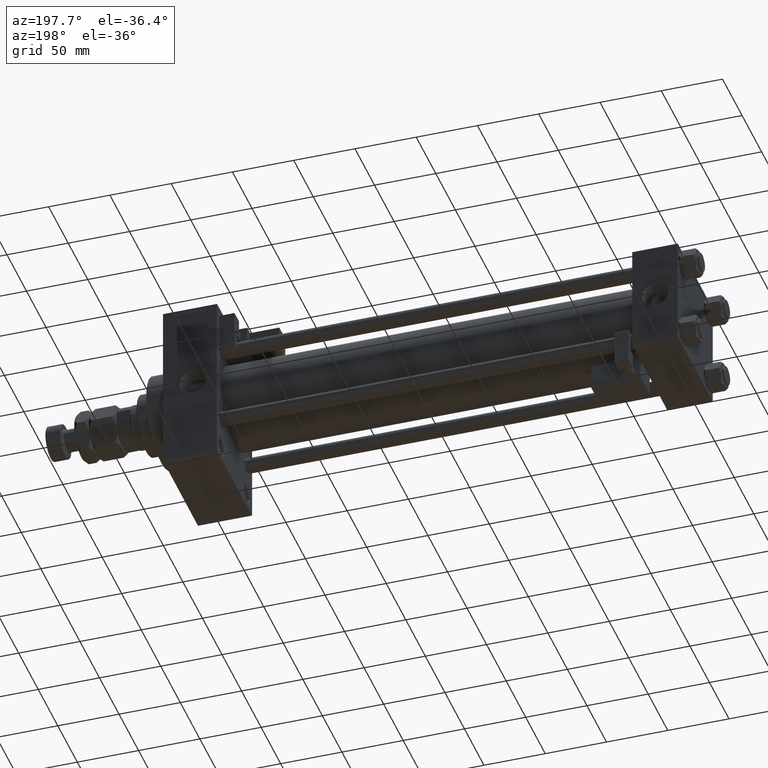
[diagram: clean part render]
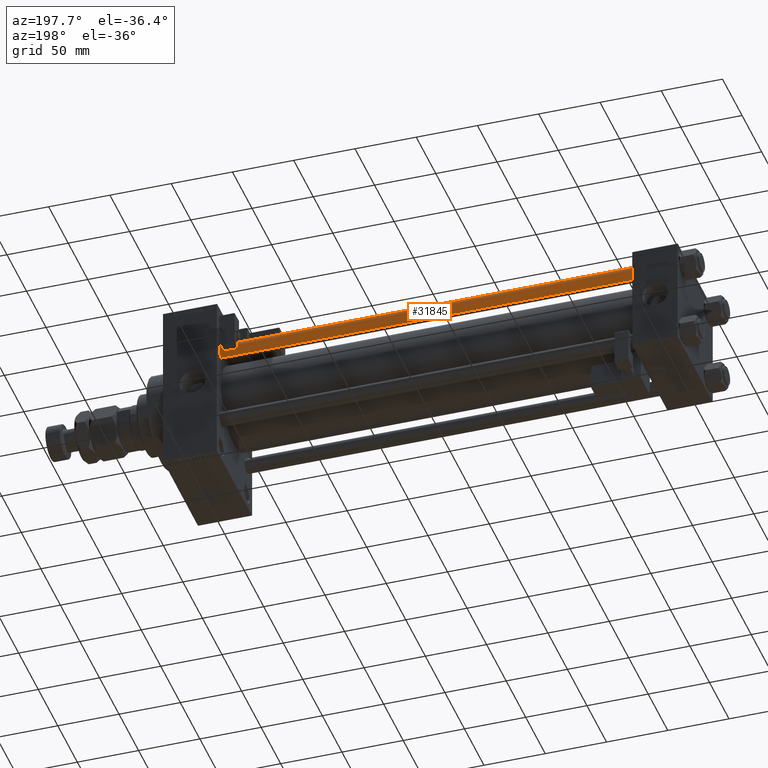
[diagram: same view with one face highlighted and labeled with its STEP entity id]
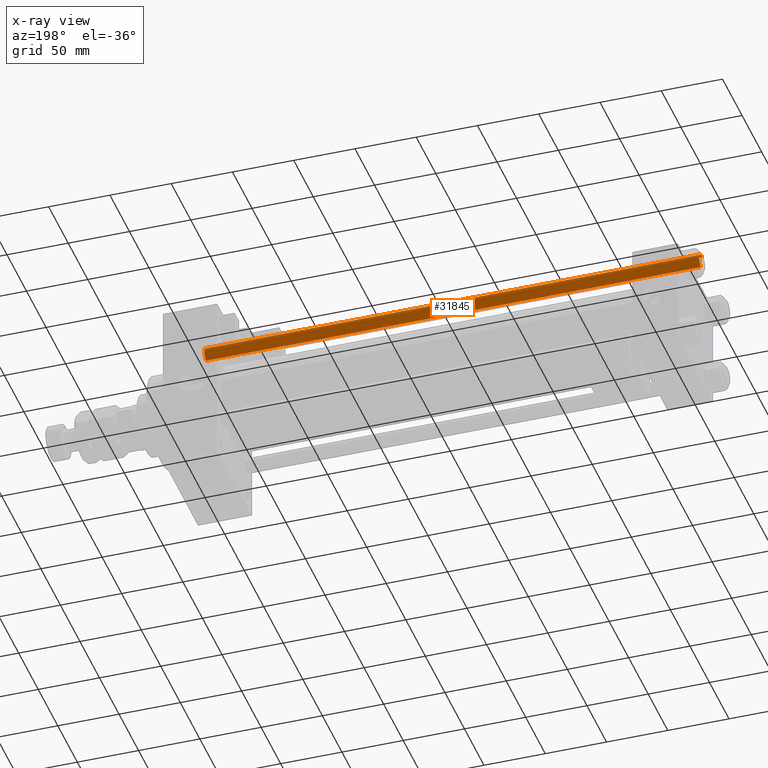
[diagram: x-ray of the same camera — body ghosted, the highlighted face saturated]
A machine part, auxiliary view. The second image highlights one B-rep face of the part: STEP entity #31845.
The next image is the same camera in x-ray: the body ghosted, the highlighted face saturated — about 0% of this face is hidden behind the body in this view.
In plain terms, the highlighted cylindrical surface (edge-blend (fillet) strip) has radius 6 mm, axis along (-1, -0, 0).
Its self-contained STEP definition (entity closure, byte-faithful):
#590 = VECTOR ( 'NONE', #42707, 1000.000000000000000 ) ;
#5813 = ORIENTED_EDGE ( 'NONE', *, *, #8048, .T. ) ;
#5819 = EDGE_LOOP ( 'NONE', ( #5813, #22879, #32105, #31784 ) ) ;
#8048 = EDGE_CURVE ( 'NONE', #51199, #15352, #38335, .T. ) ;
#8733 = EDGE_CURVE ( 'NONE', #51199, #42126, #13357, .T. ) ;
#10889 = DIRECTION ( 'NONE',  ( -0.000000000000000000, -0.000000000000000000, -1.000000000000000000 ) ) ;
#11443 = CARTESIAN_POINT ( 'NONE',  ( 0.000000000000000000, 0.000000000000000000, 404.5000000000000568 ) ) ;
#12834 = CARTESIAN_POINT ( 'NONE',  ( -6.000000000000000888, 0.000000000000000000, 405.0000000000000000 ) ) ;
#13357 = LINE ( 'NONE', #12834, #34931 ) ;
#14019 = CARTESIAN_POINT ( 'NONE',  ( 0.000000000000000000, 0.000000000000000000, 0.5000000000000559552 ) ) ;
#14538 = EDGE_CURVE ( 'NONE', #40816, #42126, #30211, .T. ) ;
#15352 = VERTEX_POINT ( 'NONE', #29237 ) ;
#16029 = CARTESIAN_POINT ( 'NONE',  ( 6.000000000000000888, 7.347880794884120722E-16, 0.5000000000000559552 ) ) ;
#16758 = CARTESIAN_POINT ( 'NONE',  ( -6.000000000000000888, 0.000000000000000000, 0.5000000000000559552 ) ) ;
#18167 = FACE_OUTER_BOUND ( 'NONE', #5819, .T. ) ;
#20886 = DIRECTION ( 'NONE',  ( -0.000000000000000000, -0.000000000000000000, -1.000000000000000000 ) ) ;
#22016 = AXIS2_PLACEMENT_3D ( 'NONE', #22727, #10889, #46942 ) ;
#22412 = AXIS2_PLACEMENT_3D ( 'NONE', #14019, #39329, #31007 ) ;
#22727 = CARTESIAN_POINT ( 'NONE',  ( 0.000000000000000000, 0.000000000000000000, 405.0000000000000000 ) ) ;
#22879 = ORIENTED_EDGE ( 'NONE', *, *, #34121, .T. ) ;
#24605 = AXIS2_PLACEMENT_3D ( 'NONE', #11443, #48842, #27893 ) ;
#25798 = LINE ( 'NONE', #42187, #590 ) ;
#27893 = DIRECTION ( 'NONE',  ( 1.000000000000000000, 0.000000000000000000, 0.000000000000000000 ) ) ;
#29237 = CARTESIAN_POINT ( 'NONE',  ( 6.000000000000000888, 7.347880794884120722E-16, 404.5000000000000568 ) ) ;
#30211 = CIRCLE ( 'NONE', #22412, 6.000000000000000888 ) ;
#30835 = CYLINDRICAL_SURFACE ( 'NONE', #22016, 6.000000000000000888 ) ;
#30893 = CARTESIAN_POINT ( 'NONE',  ( -6.000000000000000888, 0.000000000000000000, 404.5000000000000568 ) ) ;
#31007 = DIRECTION ( 'NONE',  ( 1.000000000000000000, 0.000000000000000000, 0.000000000000000000 ) ) ;
#31784 = ORIENTED_EDGE ( 'NONE', *, *, #8733, .F. ) ;
#31845 = ADVANCED_FACE ( 'NONE', ( #18167 ), #30835, .T. ) ;
#32105 = ORIENTED_EDGE ( 'NONE', *, *, #14538, .T. ) ;
#34121 = EDGE_CURVE ( 'NONE', #15352, #40816, #25798, .T. ) ;
#34931 = VECTOR ( 'NONE', #20886, 1000.000000000000000 ) ;
#38335 = CIRCLE ( 'NONE', #24605, 6.000000000000000888 ) ;
#39329 = DIRECTION ( 'NONE',  ( -0.000000000000000000, -0.000000000000000000, 1.000000000000000000 ) ) ;
#40816 = VERTEX_POINT ( 'NONE', #16029 ) ;
#42126 = VERTEX_POINT ( 'NONE', #16758 ) ;
#42187 = CARTESIAN_POINT ( 'NONE',  ( 6.000000000000000888, 7.347880794884120722E-16, 405.0000000000000000 ) ) ;
#42707 = DIRECTION ( 'NONE',  ( -0.000000000000000000, -0.000000000000000000, -1.000000000000000000 ) ) ;
#46942 = DIRECTION ( 'NONE',  ( -1.000000000000000000, 0.000000000000000000, 0.000000000000000000 ) ) ;
#48842 = DIRECTION ( 'NONE',  ( 0.000000000000000000, 0.000000000000000000, -1.000000000000000000 ) ) ;
#51199 = VERTEX_POINT ( 'NONE', #30893 ) ;